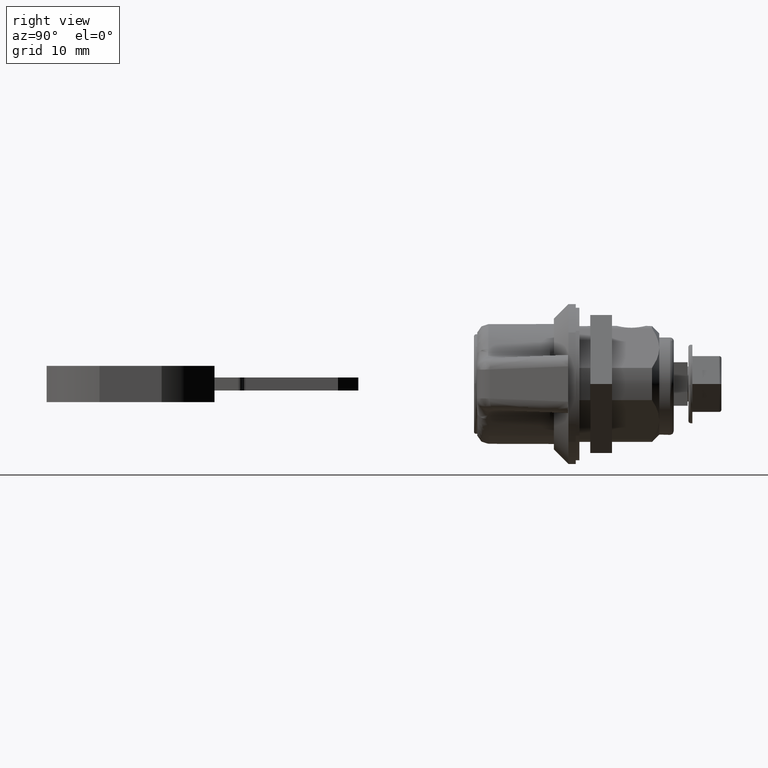
[diagram: clean part render]
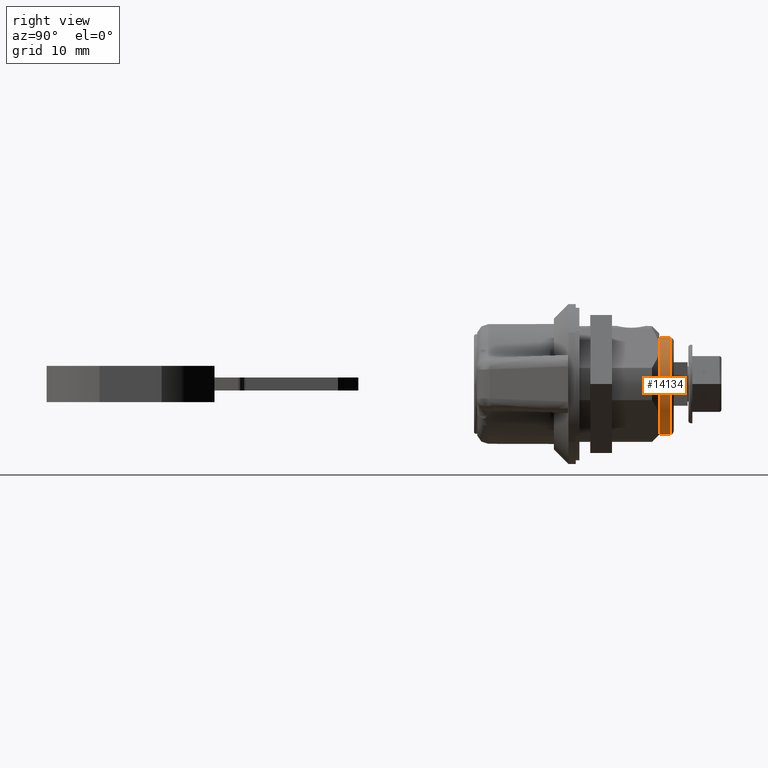
[diagram: same view with one face highlighted and labeled with its STEP entity id]
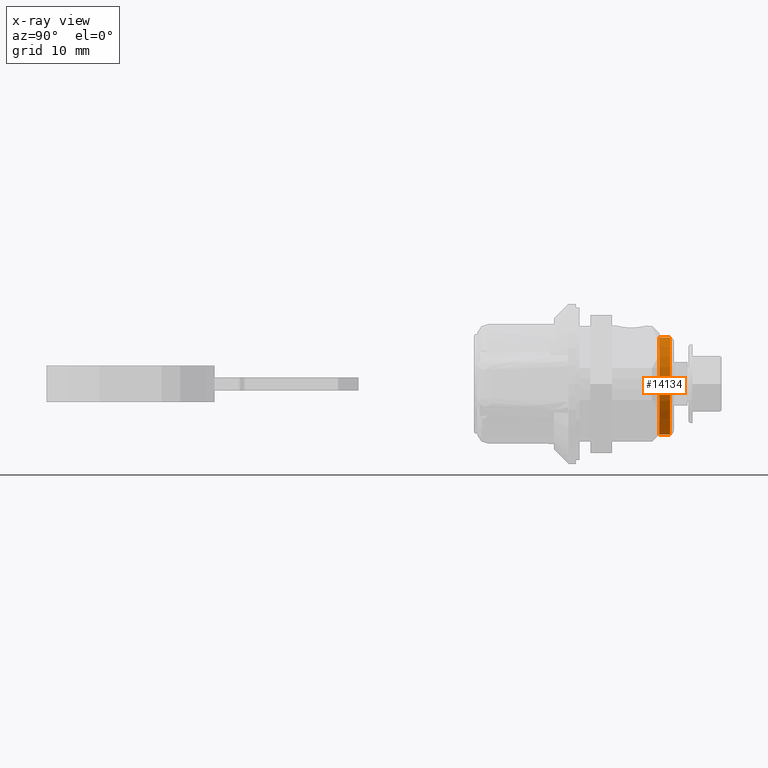
[diagram: x-ray of the same camera — body ghosted, the highlighted face saturated]
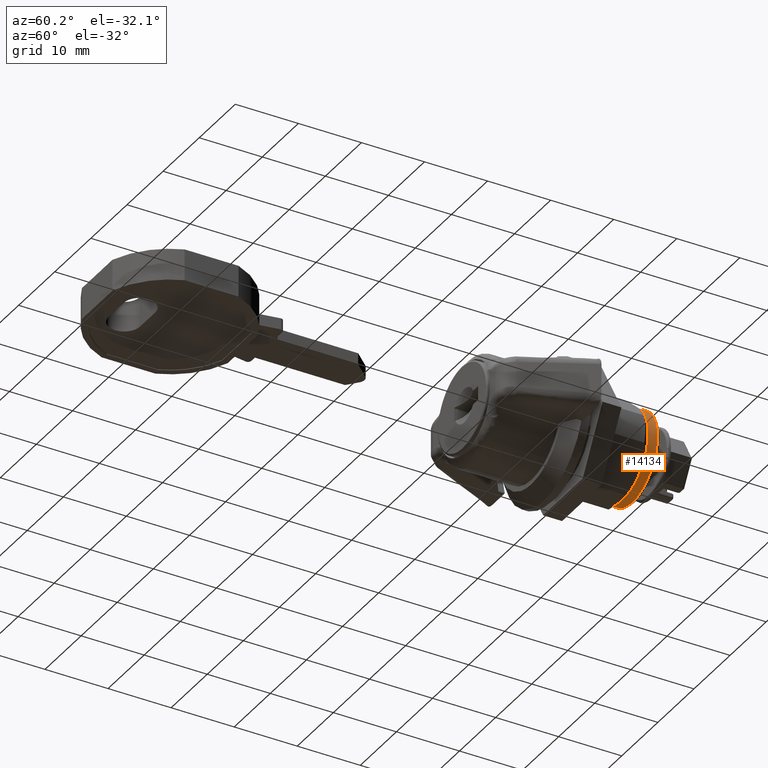
[diagram: same view with one face highlighted and labeled with its STEP entity id]
A machine part, right view. The second image highlights one B-rep face of the part: STEP entity #14134.
The next image is the same camera in x-ray: the body ghosted, the highlighted face saturated — about 0% of this face is hidden behind the body in this view.
A second angle (auxiliary view) of the same face is appended — the face is thin or edge-on in the first view.
In plain terms, the highlighted face is a freeform B-spline surface patch.
Its self-contained STEP definition (entity closure, byte-faithful):
#13899=CARTESIAN_POINT('',(13.000000638467959,-2.850000135367510,6.393551742432010));
#13900=VERTEX_POINT('',#13899);
#13924=CARTESIAN_POINT('',(13.000000638467959,-4.949748560285195,-4.949746846527086));
#13925=VERTEX_POINT('',#13924);
#13926=CARTESIAN_POINT('',(13.000000638467959,-4.949748560285195,-4.949746846527086));
#13927=CARTESIAN_POINT('',(13.000000638467929,-5.274342670317090,-4.625223085952027));
#13928=CARTESIAN_POINT('',(13.000000638467970,-5.825581173932869,-3.953156741608925));
#13929=CARTESIAN_POINT('',(13.000000638467970,-6.481817111244493,-2.756811425039082));
#13930=CARTESIAN_POINT('',(13.000000638467981,-6.843237070622299,-1.623605166717174));
#13931=CARTESIAN_POINT('',(13.000000638467990,-7.026340193970608,-0.345529078772338));
#13932=CARTESIAN_POINT('',(13.000000638467860,-6.993111035013276,0.843904987919847));
#13933=CARTESIAN_POINT('',(13.000000638468020,-6.698113378029456,2.157544961827176));
#13934=CARTESIAN_POINT('',(13.000000638467940,-6.202521730884762,3.334189726873075));
#13935=CARTESIAN_POINT('',(13.000000638467951,-5.464980702494475,4.440945955994596));
#13936=CARTESIAN_POINT('',(13.000000638468009,-4.383333733425161,5.541021548481211));
#13937=CARTESIAN_POINT('',(13.000000638467910,-3.446731158885358,6.127844817520273));
#13938=CARTESIAN_POINT('',(13.000000638467959,-2.850000135367510,6.393551742432010));
#13939=B_SPLINE_CURVE_WITH_KNOTS('',3,(#13926,#13927,#13928,#13929,#13930,#13931,#13932,#13933,#13934,#13935,#13936,#13937,#13938),.UNSPECIFIED.,.F.,.U.,(4,1,1,1,1,1,1,1,1,1,4),(0.000000102301087,1.376979120709850,2.595104521277758,4.078036149717571,4.925421435987857,6.461318484176877,7.626416323523348,8.950481911525472,10.274520247318790,11.598574344247499,13.558127152308019),.UNSPECIFIED.);
#13940=EDGE_CURVE('',#13925,#13900,#13939,.T.);
#13942=CARTESIAN_POINT('',(13.000000638467959,6.393551742432059,-2.850000135367395));
#13943=VERTEX_POINT('',#13942);
#13944=CARTESIAN_POINT('',(13.000000638467959,6.393551742432059,-2.850000135367395));
#13945=CARTESIAN_POINT('',(13.000000638468000,6.163674743845826,-3.366039625727622));
#13946=CARTESIAN_POINT('',(13.000000638467879,5.587111286465817,-4.326657659136490));
#13947=CARTESIAN_POINT('',(13.000000638467951,4.525952290147403,-5.402169382079229));
#13948=CARTESIAN_POINT('',(13.000000638468130,3.320127591085773,-6.212290860351311));
#13949=CARTESIAN_POINT('',(13.000000638467951,2.190793084320876,-6.687963665505393));
#13950=CARTESIAN_POINT('',(13.000000638467981,0.878636703001446,-6.982593570597667));
#13951=CARTESIAN_POINT('',(13.000000638467951,-0.239186474180164,-7.030784839571403));
#13952=CARTESIAN_POINT('',(13.000000638467981,-1.397056294360844,-6.882655681105522));
#13953=CARTESIAN_POINT('',(13.000000638467871,-2.490298382832565,-6.583551367508797));
#13954=CARTESIAN_POINT('',(13.000000638468210,-3.753444891906723,-5.975354612406726));
#13955=CARTESIAN_POINT('',(13.000000638467590,-4.562853828957113,-5.336810207514515));
#13956=CARTESIAN_POINT('',(13.000000638467959,-4.949748560285195,-4.949746846527086));
#13957=B_SPLINE_CURVE_WITH_KNOTS('',3,(#13944,#13945,#13946,#13947,#13948,#13949,#13950,#13951,#13952,#13953,#13954,#13955,#13956),.UNSPECIFIED.,.F.,.U.,(4,1,1,1,1,1,1,1,1,1,4),(0.000000102313066,1.694748153561580,3.336571182191902,4.501730650271634,6.037637774525700,6.990895734777505,8.526792761988052,9.374174578780334,10.486369815884849,11.916347611657180,13.558129575945390),.UNSPECIFIED.);
#13958=EDGE_CURVE('',#13943,#13925,#13957,.T.);
#14043=CARTESIAN_POINT('',(13.037500640774139,-2.678784153790979,6.467157034752483));
#14044=CARTESIAN_POINT('',(11.461563043856859,-2.678784153790979,6.467157034752483));
#14045=CARTESIAN_POINT('',(13.037500640774139,-7.671163873493717,4.399245646335273));
#14046=CARTESIAN_POINT('',(11.461563043856859,-7.671163873493717,4.399245646335273));
#14047=CARTESIAN_POINT('',(13.037500640774139,-6.934681346211464,-0.954043647459033));
#14048=CARTESIAN_POINT('',(11.461563043856859,-6.934681346211464,-0.954043647459033));
#14049=CARTESIAN_POINT('',(13.037500640774139,-6.198198818929213,-6.307332941253341));
#14050=CARTESIAN_POINT('',(11.461563043856859,-6.198198818929213,-6.307332941253341));
#14051=CARTESIAN_POINT('',(13.037500640774139,-0.832871464623514,-6.950275518147900));
#14052=CARTESIAN_POINT('',(11.461563043856859,-0.832871464623514,-6.950275518147900));
#14053=CARTESIAN_POINT('',(13.037500640774139,4.532455889682183,-7.593218095042463));
#14054=CARTESIAN_POINT('',(11.461563043856859,4.532455889682183,-7.593218095042463));
#14055=CARTESIAN_POINT('',(13.037500640774139,6.512923285221378,-2.565508708925262));
#14056=CARTESIAN_POINT('',(11.461563043856859,6.512923285221378,-2.565508708925262));
#14064=(BOUNDED_SURFACE()B_SPLINE_SURFACE(1,2,((#14043,#14045,#14047,#14049,#14051,#14053,#14055),(#14044,#14046,#14048,#14050,#14052,#14054,#14056)),.UNSPECIFIED.,.F.,.F.,.U.)B_SPLINE_SURFACE_WITH_KNOTS((2,2),(3,2,2,3),(0.0,1.0),(0.0,9.550159151159660,19.100318302319319,28.650477453478981),.UNSPECIFIED.)GEOMETRIC_REPRESENTATION_ITEM()RATIONAL_B_SPLINE_SURFACE(((1.0,0.791579171057703,1.0,0.791579171057703,1.0,0.791579171057703,1.0),(1.0,0.791579171057703,1.0,0.791579171057703,1.0,0.791579171057703,1.0)))REPRESENTATION_ITEM('')SURFACE());
#14065=CARTESIAN_POINT('',(11.500000546220701,6.393551378412930,-2.850000135367395));
#14066=VERTEX_POINT('',#14065);
#14067=CARTESIAN_POINT('',(13.000000638467959,6.393551742432059,-2.850000135367395));
#14068=CARTESIAN_POINT('',(11.500000546220701,6.393551378412930,-2.850000135367395));
#14069=QUASI_UNIFORM_CURVE('',1,(#14067,#14068),.UNSPECIFIED.,.F.,.U.);
#14070=EDGE_CURVE('',#13943,#14066,#14069,.T.);
#14071=ORIENTED_EDGE('',*,*,#14070,.F.);
#14072=ORIENTED_EDGE('',*,*,#13958,.T.);
#14073=ORIENTED_EDGE('',*,*,#13940,.T.);
#14074=CARTESIAN_POINT('',(11.500000546220701,-2.850000135367510,6.393551378412880));
#14075=VERTEX_POINT('',#14074);
#14076=CARTESIAN_POINT('',(13.000000638467959,-2.850000135367510,6.393551742432010));
#14077=CARTESIAN_POINT('',(11.500000546220701,-2.850000135367510,6.393551378412880));
#14078=QUASI_UNIFORM_CURVE('',1,(#14076,#14077),.UNSPECIFIED.,.F.,.U.);
#14079=EDGE_CURVE('',#13900,#14075,#14078,.T.);
#14080=ORIENTED_EDGE('',*,*,#14079,.T.);
#14081=CARTESIAN_POINT('',(11.500000546220701,-4.949747703406190,4.949747703406239));
#14082=VERTEX_POINT('',#14081);
#14083=CARTESIAN_POINT('',(11.500000546220701,-2.850000135367510,6.393551378412880));
#14084=CARTESIAN_POINT('',(11.500000546220710,-3.630339078920775,6.046047724105104));
#14085=CARTESIAN_POINT('',(11.500000546220670,-4.346067979790669,5.554166069834709));
#14086=CARTESIAN_POINT('',(11.500000546220701,-4.949747703406190,4.949747703406239));
#14087=B_SPLINE_CURVE_WITH_KNOTS('',3,(#14083,#14084,#14085,#14086),.UNSPECIFIED.,.F.,.U.,(4,4),(3.904327E-009,2.562535001140200),.UNSPECIFIED.);
#14088=EDGE_CURVE('',#14075,#14082,#14087,.T.);
#14089=ORIENTED_EDGE('',*,*,#14088,.T.);
#14090=CARTESIAN_POINT('',(11.500000546220701,-4.949747703406159,-4.949747703406310));
#14091=VERTEX_POINT('',#14090);
#14092=CARTESIAN_POINT('',(11.500000546220701,-4.949747703406190,4.949747703406239));
#14093=CARTESIAN_POINT('',(11.500000546220701,-5.253485696162965,4.646066443800358));
#14094=CARTESIAN_POINT('',(11.500000546220701,-5.804807464811298,3.982551031518937));
#14095=CARTESIAN_POINT('',(11.500000546220731,-6.407664732689951,2.902969294827602));
#14096=CARTESIAN_POINT('',(11.500000546220670,-6.807137323214565,1.764536844805785));
#14097=CARTESIAN_POINT('',(11.500000546220701,-6.998747058485536,0.660177987060221));
#14098=CARTESIAN_POINT('',(11.500000546220811,-7.013936938966753,-0.574351088627492));
#14099=CARTESIAN_POINT('',(11.500000546220461,-6.833523495936415,-1.653387000404509));
#14100=CARTESIAN_POINT('',(11.500000546220861,-6.457819735072259,-2.767567381303655));
#14101=CARTESIAN_POINT('',(11.500000546220519,-5.908213685887326,-3.843017574632387));
#14102=CARTESIAN_POINT('',(11.500000546220740,-5.314268932646860,-4.585347634403705));
#14103=CARTESIAN_POINT('',(11.500000546220701,-4.949747703406159,-4.949747703406310));
#14104=B_SPLINE_CURVE_WITH_KNOTS('',3,(#14092,#14093,#14094,#14095,#14096,#14097,#14098,#14099,#14100,#14101,#14102,#14103),.UNSPECIFIED.,.F.,.U.,(4,1,1,1,1,1,1,1,1,4),(0.000000064248203,1.288534230768788,2.577102280922006,3.693862404654931,4.896505502934497,5.927317743325138,7.387688030394141,8.160828439362753,9.449383670622304,10.995644158530540),.UNSPECIFIED.);
#14105=EDGE_CURVE('',#14082,#14091,#14104,.T.);
#14106=ORIENTED_EDGE('',*,*,#14105,.T.);
#14107=CARTESIAN_POINT('',(11.500000546220701,4.949747703406199,-4.949747703406290));
#14108=VERTEX_POINT('',#14107);
#14109=CARTESIAN_POINT('',(11.500000546220701,-4.949747703406159,-4.949747703406310));
#14110=CARTESIAN_POINT('',(11.500000546220701,-4.605588468904743,-5.294013510203686));
#14111=CARTESIAN_POINT('',(11.500000546220679,-3.934506754788530,-5.837730839603967));
#14112=CARTESIAN_POINT('',(11.500000546220720,-2.848747957025953,-6.426685458296940));
#14113=CARTESIAN_POINT('',(11.500000546220670,-1.927164759990323,-6.750045664887486));
#14114=CARTESIAN_POINT('',(11.500000546220690,-0.945511590172385,-6.957864604429931));
#14115=CARTESIAN_POINT('',(11.500000546220710,0.143635235570895,-7.038248342577822));
#14116=CARTESIAN_POINT('',(11.500000546220710,1.459126611471027,-6.892393200668659));
#14117=CARTESIAN_POINT('',(11.500000546220690,2.638567131881902,-6.518707637479191));
#14118=CARTESIAN_POINT('',(11.500000546220720,3.839684334168503,-5.904820513604317));
#14119=CARTESIAN_POINT('',(11.500000546220660,4.544899386414428,-5.354823639738503));
#14120=CARTESIAN_POINT('',(11.500000546220701,4.949747703406199,-4.949747703406290));
#14121=B_SPLINE_CURVE_WITH_KNOTS('',3,(#14109,#14110,#14111,#14112,#14113,#14114,#14115,#14116,#14117,#14118,#14119,#14120),.UNSPECIFIED.,.F.,.U.,(4,1,1,1,1,1,1,1,1,4),(0.000000064130209,1.460358677218437,2.577102246217772,3.693862354944880,4.381081377157464,5.583707183264989,6.958169346746105,8.332637716616265,9.277587671171434,10.995644010898340),.UNSPECIFIED.);
#14122=EDGE_CURVE('',#14091,#14108,#14121,.T.);
#14123=ORIENTED_EDGE('',*,*,#14122,.T.);
#14124=CARTESIAN_POINT('',(11.500000546220701,4.949747703406199,-4.949747703406290));
#14125=CARTESIAN_POINT('',(11.500000546220701,5.270660529324487,-4.628915115423887));
#14126=CARTESIAN_POINT('',(11.500000546220720,5.815637816068224,-3.965945883213254));
#14127=CARTESIAN_POINT('',(11.500000546220690,6.230564963919573,-3.215723536890175));
#14128=CARTESIAN_POINT('',(11.500000546220701,6.393551378412930,-2.850000135367395));
#14129=B_SPLINE_CURVE_WITH_KNOTS('',3,(#14124,#14125,#14126,#14127,#14128),.UNSPECIFIED.,.F.,.U.,(4,1,4),(3.904530E-009,1.361342332918883,2.562534960220381),.UNSPECIFIED.);
#14130=EDGE_CURVE('',#14108,#14066,#14129,.T.);
#14131=ORIENTED_EDGE('',*,*,#14130,.T.);
#14132=EDGE_LOOP('',(#14071,#14072,#14073,#14080,#14089,#14106,#14123,#14131));
#14133=FACE_OUTER_BOUND('',#14132,.T.);
#14134=ADVANCED_FACE('',(#14133),#14064,.T.);